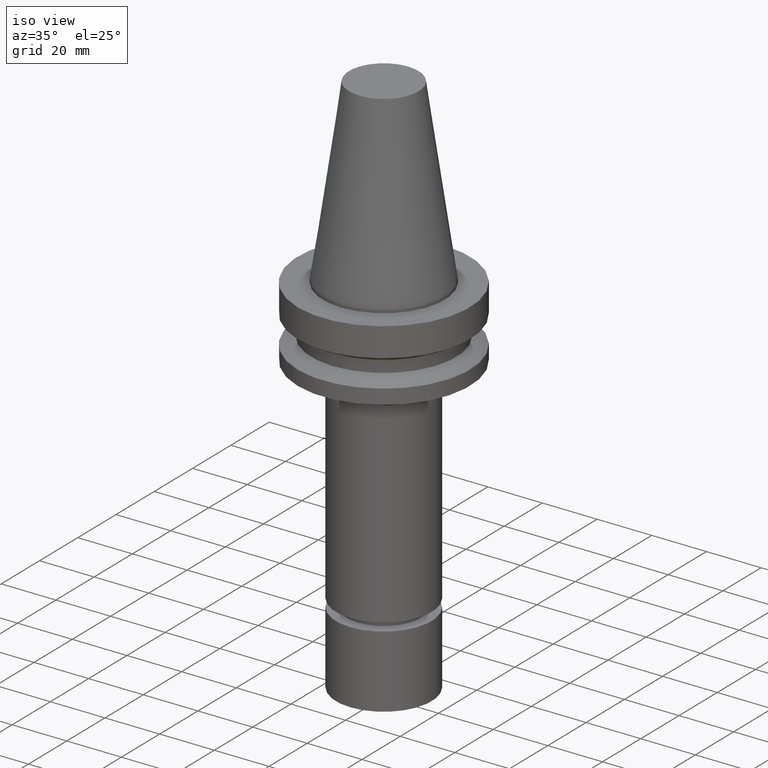
[diagram: clean part render]
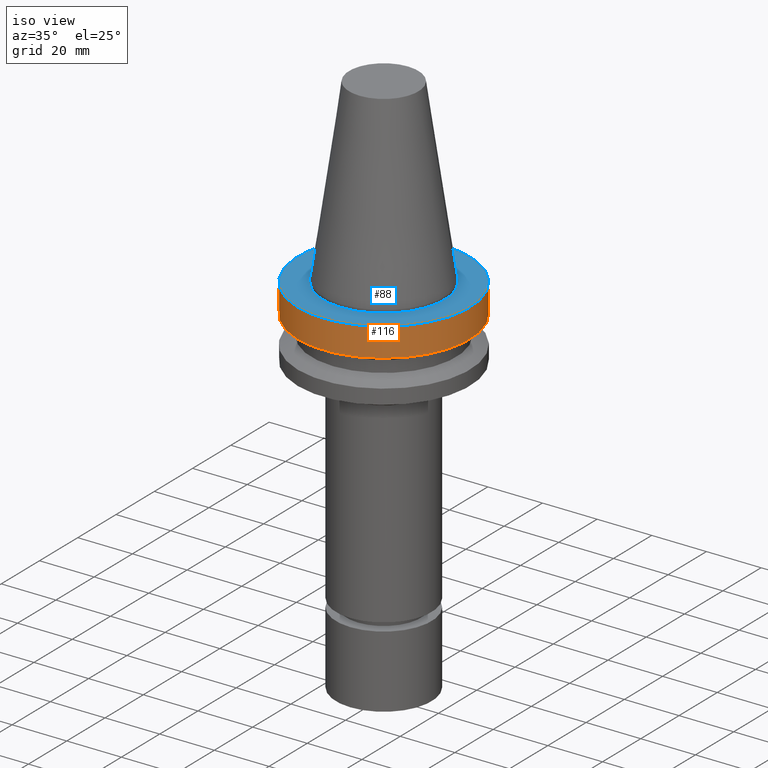
[diagram: same view with the hole feature highlighted: cylindrical wall and planar end face, labeled with their STEP entity ids]
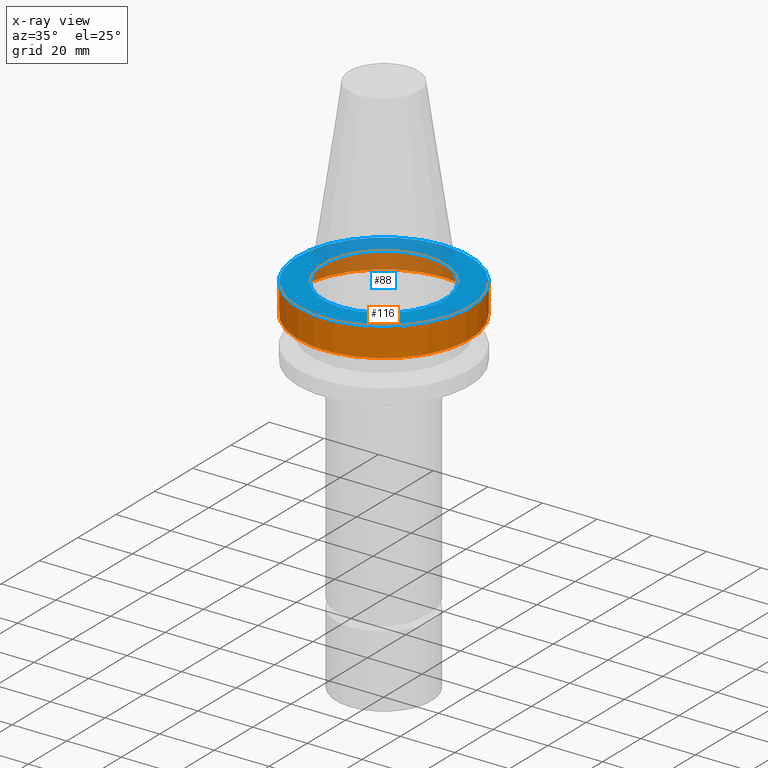
[diagram: x-ray of the same camera — body ghosted, the hole faces saturated]
A machine part, iso view. The highlighted faces form one hole feature of diameter 63 mm: the cylindrical wall (entity #116, orange) and its adjacent planar end face (entity #88, blue) — they share a circular edge in the B-rep.
The next image is the same camera in x-ray (body ghosted, the hole faces saturated) — the bore reads through the body.
Wall:
#116=ADVANCED_FACE('Unnamed[1]',(#265,#266),#267,.T.);
#135=EDGE_CURVE('Unnamed[1]',#296,#296,#297,.T.);
#161=EDGE_CURVE('Unnamed[1]',#334,#334,#335,.T.);
#265=FACE_BOUND('',#457,.T.);
#266=FACE_BOUND('',#458,.T.);
#267=CYLINDRICAL_SURFACE('',#459,31.5);
#296=VERTEX_POINT('',#495);
#297=CIRCLE('',#496,31.5000000000003);
#334=VERTEX_POINT('',#543);
#335=CIRCLE('',#544,31.4999999999996);
#457=EDGE_LOOP('',(#652));
#458=EDGE_LOOP('',(#653));
#459=AXIS2_PLACEMENT_3D('',#654,#655,#656);
#495=CARTESIAN_POINT('',(7.08182973902924E-016,31.5000000000004,-11.5655056526664));
#496=AXIS2_PLACEMENT_3D('',#689,#690,#691);
#543=CARTESIAN_POINT('',(6.12323399573568E-017,31.4999999999997,-0.999999999999825));
#544=AXIS2_PLACEMENT_3D('',#728,#729,#730);
#652=ORIENTED_EDGE('',*,*,#135,.F.);
#653=ORIENTED_EDGE('',*,*,#161,.T.);
#654=CARTESIAN_POINT('',(3.84707656930141E-016,7.03504071417766E-014,-6.28275282633309));
#655=DIRECTION('',(6.12323399573676E-017,-9.38040710726666E-017,-1.0));
#656=DIRECTION('',(9.16690038539118E-034,1.0,-9.38040710726666E-017));
#689=CARTESIAN_POINT('',(7.08182973902924E-016,6.98548634201955E-014,-11.5655056526664));
#690=DIRECTION('',(6.12323399573677E-017,-9.38040710726656E-017,-1.0));
#691=DIRECTION('',(9.16690038527719E-034,1.0,-9.38040710726656E-017));
#728=CARTESIAN_POINT('',(6.12323399573572E-017,7.08459508633578E-014,-0.999999999999829));
#729=DIRECTION('',(6.12323399573677E-017,-9.38040710726677E-017,-1.0));
#730=DIRECTION('',(9.16690038539128E-034,1.0,-9.38040710726677E-017));
End face:
#88=ADVANCED_FACE('Unnamed[1]',(#220,#221),#222,.T.);
#141=EDGE_CURVE('Unnamed[1]',#305,#305,#306,.T.);
#161=EDGE_CURVE('Unnamed[1]',#334,#334,#335,.T.);
#220=FACE_OUTER_BOUND('',#401,.T.);
#221=FACE_BOUND('',#402,.T.);
#222=PLANE('',#403);
#305=VERTEX_POINT('',#507);
#306=CIRCLE('',#508,22.225);
#334=VERTEX_POINT('',#543);
#335=CIRCLE('',#544,31.4999999999996);
#401=EDGE_LOOP('',(#601));
#402=EDGE_LOOP('',(#602));
#403=AXIS2_PLACEMENT_3D('',#603,#604,#605);
#507=CARTESIAN_POINT('',(6.12323399573622E-017,22.2250000000001,-0.999999999999912));
#508=AXIS2_PLACEMENT_3D('',#698,#699,#700);
#543=CARTESIAN_POINT('',(6.12323399573568E-017,31.4999999999997,-0.999999999999825));
#544=AXIS2_PLACEMENT_3D('',#728,#729,#730);
#601=ORIENTED_EDGE('',*,*,#161,.F.);
#602=ORIENTED_EDGE('',*,*,#141,.T.);
#603=CARTESIAN_POINT('',(6.12323399573595E-017,26.8624999999999,-0.999999999999869));
#604=DIRECTION('',(-6.12323399573677E-017,-9.35138060429241E-015,1.0));
#605=DIRECTION('',(5.77434068963536E-031,-1.0,-9.35138060429241E-015));
#698=CARTESIAN_POINT('',(6.12323399573624E-017,7.08459508633578E-014,-0.999999999999915));
#699=DIRECTION('',(6.12323399573677E-017,-9.38040710727522E-017,-1.0));
#700=DIRECTION('',(9.16690038542525E-034,1.0,-9.38040710727522E-017));
#728=CARTESIAN_POINT('',(6.12323399573572E-017,7.08459508633578E-014,-0.999999999999829));
#729=DIRECTION('',(6.12323399573677E-017,-9.38040710726677E-017,-1.0));
#730=DIRECTION('',(9.16690038539128E-034,1.0,-9.38040710726677E-017));